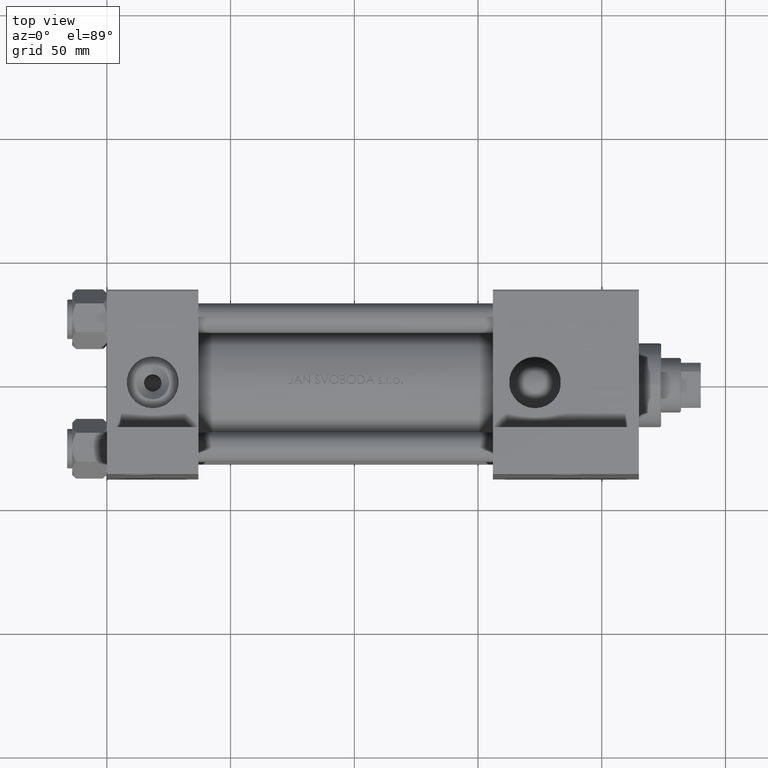
[diagram: clean part render]
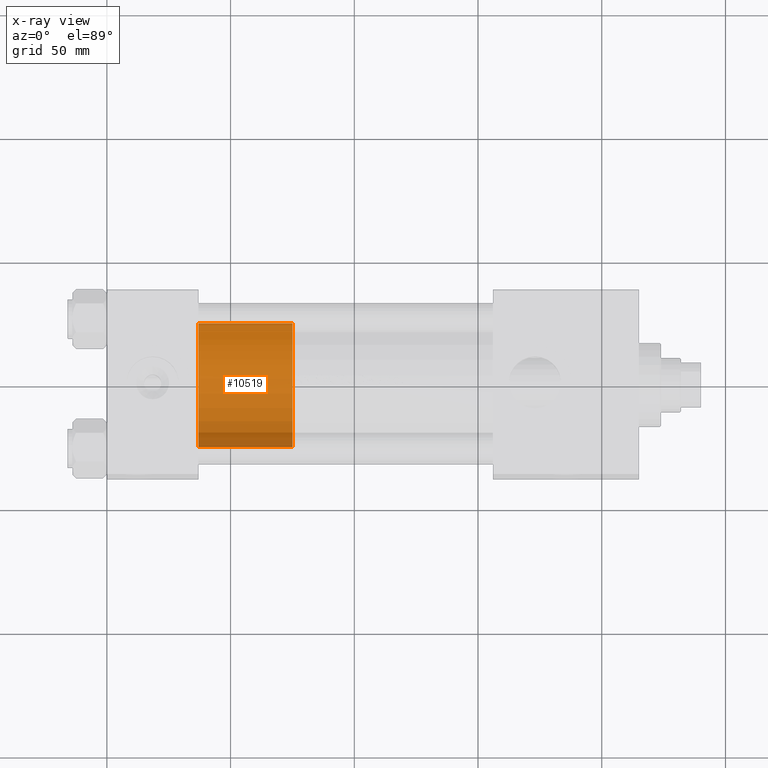
[diagram: x-ray — body ghosted, one internal face saturated and labeled with its STEP entity id]
A machine part, top view, then the same camera in x-ray: the body is ghosted and one INTERNAL B-rep face — a face not visible from any outside direction — is saturated and labeled: STEP entity #10519.
In plain terms, the highlighted cylindrical surface (partial cylindrical patch) has radius 25 mm, axis along (-1, 0, 0).
Its self-contained STEP definition (entity closure, byte-faithful):
#884 = AXIS2_PLACEMENT_3D ( 'NONE', #41760, #8603, #20076 ) ;
#1216 = CARTESIAN_POINT ( 'NONE',  ( -25.00000000000000000, 0.000000000000000000, 38.00000000000000000 ) ) ;
#1433 = VERTEX_POINT ( 'NONE', #19556 ) ;
#2188 = DIRECTION ( 'NONE',  ( -0.000000000000000000, -0.000000000000000000, -1.000000000000000000 ) ) ;
#2604 = ORIENTED_EDGE ( 'NONE', *, *, #17903, .T. ) ;
#3383 = EDGE_CURVE ( 'NONE', #16189, #1433, #12574, .T. ) ;
#5360 = DIRECTION ( 'NONE',  ( 1.000000000000000000, 0.000000000000000000, 0.000000000000000000 ) ) ;
#8603 = DIRECTION ( 'NONE',  ( -0.000000000000000000, -0.000000000000000000, -1.000000000000000000 ) ) ;
#8916 = LINE ( 'NONE', #1216, #11883 ) ;
#10519 = ADVANCED_FACE ( 'NONE', ( #38510 ), #30541, .T. ) ;
#10582 = EDGE_CURVE ( 'NONE', #16189, #42098, #42129, .T. ) ;
#11883 = VECTOR ( 'NONE', #2188, 1000.000000000000000 ) ;
#12574 = LINE ( 'NONE', #31766, #30089 ) ;
#12788 = AXIS2_PLACEMENT_3D ( 'NONE', #14283, #32750, #33734 ) ;
#14283 = CARTESIAN_POINT ( 'NONE',  ( 0.000000000000000000, 0.000000000000000000, 38.00000000000000000 ) ) ;
#16132 = AXIS2_PLACEMENT_3D ( 'NONE', #38570, #38326, #5360 ) ;
#16189 = VERTEX_POINT ( 'NONE', #28632 ) ;
#16925 = CIRCLE ( 'NONE', #16132, 25.00000000000000000 ) ;
#17903 = EDGE_CURVE ( 'NONE', #1433, #40473, #16925, .T. ) ;
#19556 = CARTESIAN_POINT ( 'NONE',  ( 25.00000000000000000, 3.061616997868383043E-15, 0.000000000000000000 ) ) ;
#20076 = DIRECTION ( 'NONE',  ( -1.000000000000000000, 0.000000000000000000, 0.000000000000000000 ) ) ;
#28632 = CARTESIAN_POINT ( 'NONE',  ( 25.00000000000000000, 3.061616997868383043E-15, 38.00000000000000000 ) ) ;
#28922 = CARTESIAN_POINT ( 'NONE',  ( -25.00000000000000000, 0.000000000000000000, 38.00000000000000000 ) ) ;
#30089 = VECTOR ( 'NONE', #35018, 1000.000000000000000 ) ;
#30541 = CYLINDRICAL_SURFACE ( 'NONE', #884, 25.00000000000000000 ) ;
#30562 = ORIENTED_EDGE ( 'NONE', *, *, #10582, .F. ) ;
#31766 = CARTESIAN_POINT ( 'NONE',  ( 25.00000000000000000, 3.061616997868383043E-15, 38.00000000000000000 ) ) ;
#32750 = DIRECTION ( 'NONE',  ( 0.000000000000000000, 0.000000000000000000, 1.000000000000000000 ) ) ;
#33734 = DIRECTION ( 'NONE',  ( 1.000000000000000000, 0.000000000000000000, 0.000000000000000000 ) ) ;
#34397 = ORIENTED_EDGE ( 'NONE', *, *, #45173, .F. ) ;
#35018 = DIRECTION ( 'NONE',  ( -0.000000000000000000, -0.000000000000000000, -1.000000000000000000 ) ) ;
#38326 = DIRECTION ( 'NONE',  ( 0.000000000000000000, 0.000000000000000000, 1.000000000000000000 ) ) ;
#38417 = ORIENTED_EDGE ( 'NONE', *, *, #3383, .T. ) ;
#38434 = EDGE_LOOP ( 'NONE', ( #30562, #38417, #2604, #34397 ) ) ;
#38510 = FACE_OUTER_BOUND ( 'NONE', #38434, .T. ) ;
#38570 = CARTESIAN_POINT ( 'NONE',  ( 0.000000000000000000, 0.000000000000000000, 0.000000000000000000 ) ) ;
#40473 = VERTEX_POINT ( 'NONE', #48662 ) ;
#41760 = CARTESIAN_POINT ( 'NONE',  ( 0.000000000000000000, 0.000000000000000000, 38.00000000000000000 ) ) ;
#42098 = VERTEX_POINT ( 'NONE', #28922 ) ;
#42129 = CIRCLE ( 'NONE', #12788, 25.00000000000000000 ) ;
#45173 = EDGE_CURVE ( 'NONE', #42098, #40473, #8916, .T. ) ;
#48662 = CARTESIAN_POINT ( 'NONE',  ( -25.00000000000000000, 0.000000000000000000, 0.000000000000000000 ) ) ;